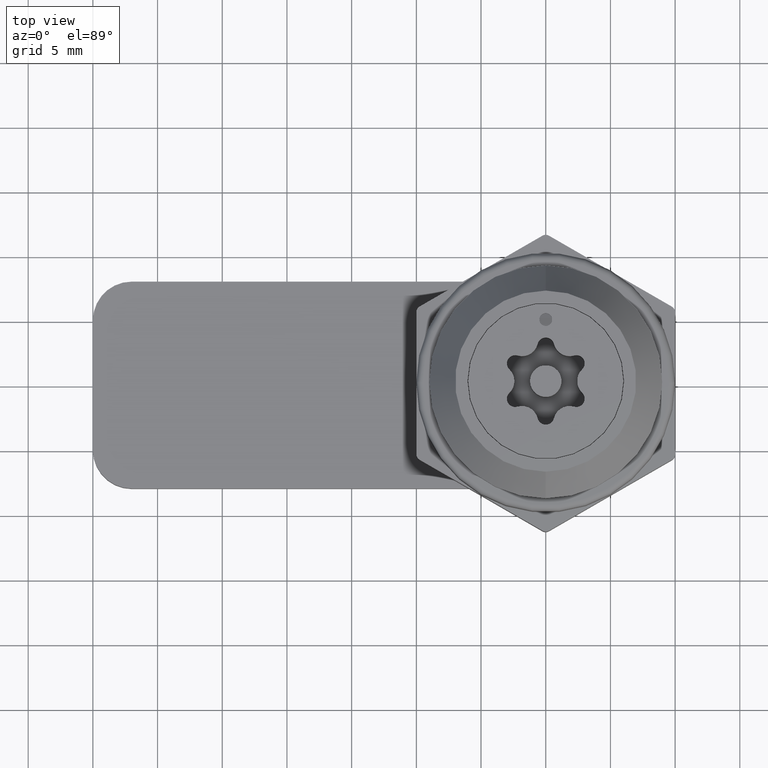
[diagram: clean part render]
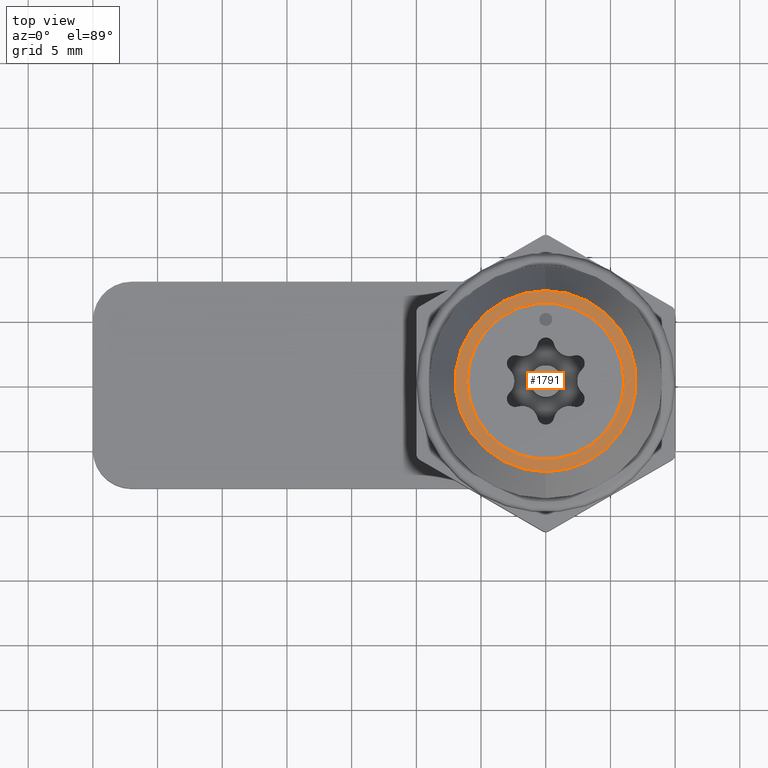
[diagram: same view with one face highlighted and labeled with its STEP entity id]
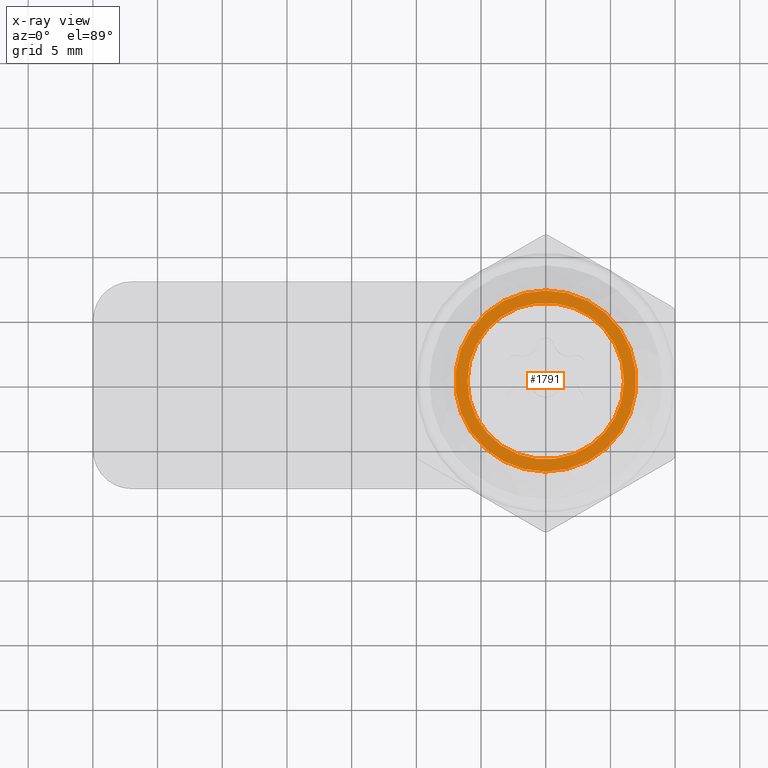
[diagram: x-ray of the same camera — body ghosted, the highlighted face saturated]
A machine part, top view. The second image highlights one B-rep face of the part: STEP entity #1791.
The next image is the same camera in x-ray: the body ghosted, the highlighted face saturated — about 0% of this face is hidden behind the body in this view.
In plain terms, the highlighted planar face has unit normal (0, 0, 1).
Its self-contained STEP definition (entity closure, byte-faithful):
#8 = DIRECTION ( 'NONE',  ( 1.000000000000000000, 0.0000000000000000000, 0.0000000000000000000 ) ) ;
#119 = ORIENTED_EDGE ( 'NONE', *, *, #3210, .F. ) ;
#233 = CARTESIAN_POINT ( 'NONE',  ( 0.0000000000000000000, 1.033946718945711100E-016, 4.000000000000000000 ) ) ;
#360 = AXIS2_PLACEMENT_3D ( 'NONE', #860, #3901, #1295 ) ;
#420 = AXIS2_PLACEMENT_3D ( 'NONE', #2647, #2607, #8 ) ;
#643 = AXIS2_PLACEMENT_3D ( 'NONE', #4767, #2175, #5214 ) ;
#666 = DIRECTION ( 'NONE',  ( 0.0000000000000000000, 1.000000000000000000, 0.0000000000000000000 ) ) ;
#671 = VERTEX_POINT ( 'NONE', #4819 ) ;
#834 = ORIENTED_EDGE ( 'NONE', *, *, #3203, .F. ) ;
#860 = CARTESIAN_POINT ( 'NONE',  ( 0.0000000000000000000, 1.033946718945711100E-016, 4.000000000000000000 ) ) ;
#1162 = FACE_BOUND ( 'NONE', #5560, .T. ) ;
#1221 = CARTESIAN_POINT ( 'NONE',  ( 6.049999999999999800, 0.0000000000000000000, 4.000000000000000000 ) ) ;
#1295 = DIRECTION ( 'NONE',  ( 0.0000000000000000000, 1.000000000000000000, 0.0000000000000000000 ) ) ;
#1309 = FACE_OUTER_BOUND ( 'NONE', #1641, .T. ) ;
#1394 = EDGE_CURVE ( 'NONE', #3402, #1458, #5329, .T. ) ;
#1456 = AXIS2_PLACEMENT_3D ( 'NONE', #233, #3270, #666 ) ;
#1458 = VERTEX_POINT ( 'NONE', #1221 ) ;
#1641 = EDGE_LOOP ( 'NONE', ( #834, #2438 ) ) ;
#1791 = ADVANCED_FACE ( 'NONE', ( #1162, #1309 ), #4281, .T. ) ;
#1925 = CIRCLE ( 'NONE', #643, 6.049999999999999800 ) ;
#2175 = DIRECTION ( 'NONE',  ( 0.0000000000000000000, 0.0000000000000000000, 1.000000000000000000 ) ) ;
#2254 = VERTEX_POINT ( 'NONE', #5538 ) ;
#2438 = ORIENTED_EDGE ( 'NONE', *, *, #4542, .F. ) ;
#2496 = DIRECTION ( 'NONE',  ( 0.0000000000000000000, 3.446489063152369900E-017, 1.000000000000000000 ) ) ;
#2607 = DIRECTION ( 'NONE',  ( 0.0000000000000000000, 0.0000000000000000000, 1.000000000000000000 ) ) ;
#2647 = CARTESIAN_POINT ( 'NONE',  ( 0.0000000000000000000, 0.0000000000000000000, 4.000000000000000000 ) ) ;
#3203 = EDGE_CURVE ( 'NONE', #2254, #671, #4091, .T. ) ;
#3210 = EDGE_CURVE ( 'NONE', #1458, #3402, #1925, .T. ) ;
#3270 = DIRECTION ( 'NONE',  ( -0.0000000000000000000, -3.446489063152369900E-017, -1.000000000000000000 ) ) ;
#3402 = VERTEX_POINT ( 'NONE', #5047 ) ;
#3589 = AXIS2_PLACEMENT_3D ( 'NONE', #3803, #2496, #4655 ) ;
#3800 = ORIENTED_EDGE ( 'NONE', *, *, #1394, .F. ) ;
#3803 = CARTESIAN_POINT ( 'NONE',  ( 0.0000000000000000000, 1.033946718945711000E-016, 4.000000000000000000 ) ) ;
#3901 = DIRECTION ( 'NONE',  ( -0.0000000000000000000, -3.446489063152369900E-017, -1.000000000000000000 ) ) ;
#4091 = CIRCLE ( 'NONE', #360, 7.000000000000000000 ) ;
#4281 = PLANE ( 'NONE',  #3589 ) ;
#4542 = EDGE_CURVE ( 'NONE', #671, #2254, #5144, .T. ) ;
#4655 = DIRECTION ( 'NONE',  ( 0.0000000000000000000, -1.000000000000000000, 3.446489063152369900E-017 ) ) ;
#4767 = CARTESIAN_POINT ( 'NONE',  ( 0.0000000000000000000, 0.0000000000000000000, 4.000000000000000000 ) ) ;
#4819 = CARTESIAN_POINT ( 'NONE',  ( 9.797174393178827600E-016, -7.000000000000000900, 4.000000000000000000 ) ) ;
#5047 = CARTESIAN_POINT ( 'NONE',  ( -6.049999999999999800, 7.409113134841486500E-016, 4.000000000000000000 ) ) ;
#5144 = CIRCLE ( 'NONE', #1456, 7.000000000000000000 ) ;
#5214 = DIRECTION ( 'NONE',  ( 1.000000000000000000, 0.0000000000000000000, 0.0000000000000000000 ) ) ;
#5329 = CIRCLE ( 'NONE', #420, 6.049999999999999800 ) ;
#5538 = CARTESIAN_POINT ( 'NONE',  ( 0.0000000000000000000, 7.000000000000000000, 4.000000000000000000 ) ) ;
#5560 = EDGE_LOOP ( 'NONE', ( #119, #3800 ) ) ;